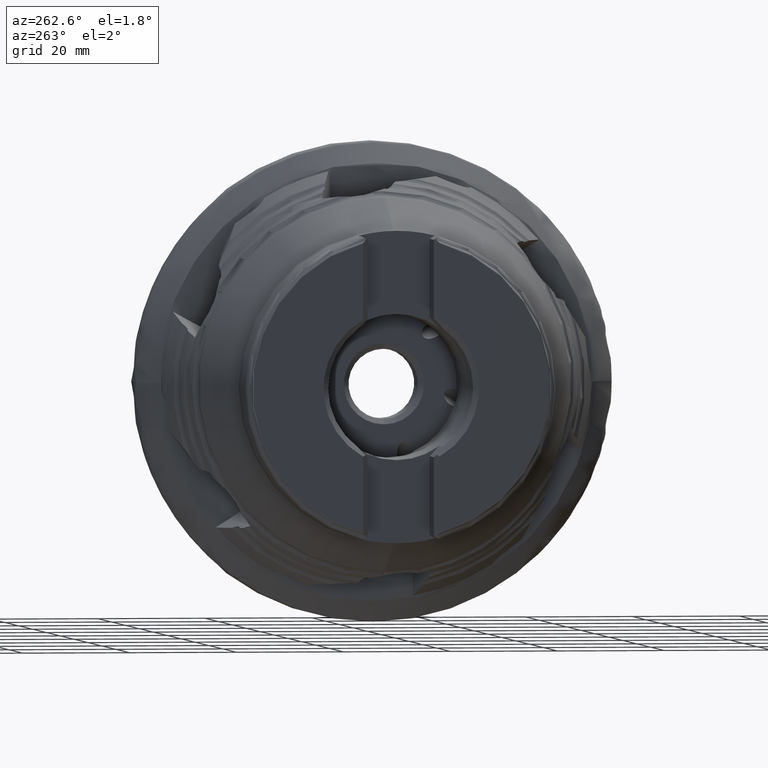
[diagram: clean part render]
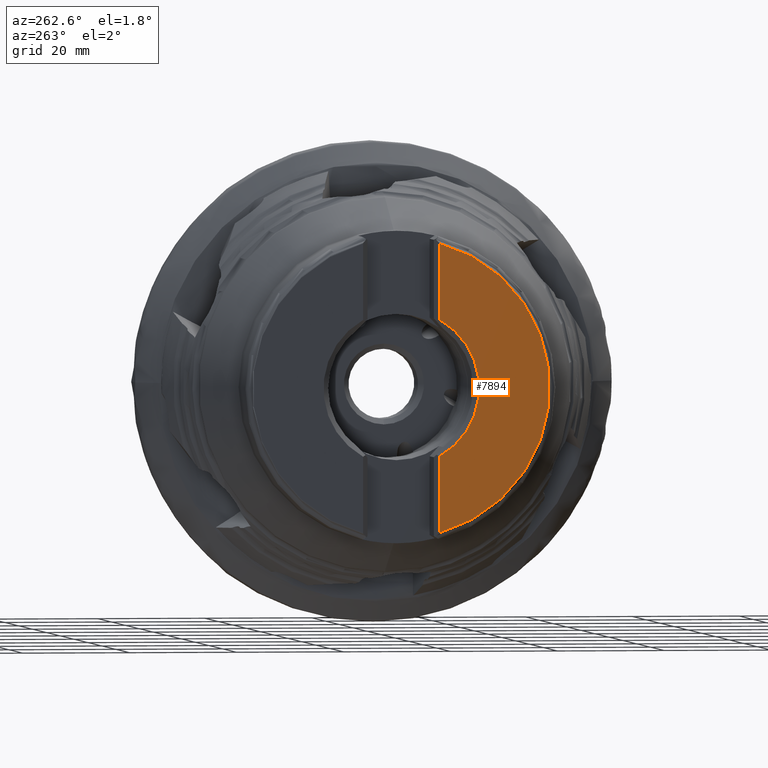
[diagram: same view with one face highlighted and labeled with its STEP entity id]
A machine part, auxiliary view. The second image highlights one B-rep face of the part: STEP entity #7894.
In plain terms, the highlighted planar face has unit normal (-1, 0, 0).
Its self-contained STEP definition (entity closure, byte-faithful):
#305 = CARTESIAN_POINT ( 'NONE',  ( -49.10399999999999900, -7.150000000000020800, -26.85445214484927200 ) ) ;
#554 = DIRECTION ( 'NONE',  ( 0.0000000000000000000, 0.0000000000000000000, -1.000000000000000000 ) ) ;
#859 = CARTESIAN_POINT ( 'NONE',  ( -49.10399999999999900, -7.150000000000020800, 26.85445214484927200 ) ) ;
#897 = CIRCLE ( 'NONE', #6122, 27.78999999999999900 ) ;
#999 = DIRECTION ( 'NONE',  ( 0.0000000000000000000, 0.0000000000000000000, 1.000000000000000000 ) ) ;
#1037 = PLANE ( 'NONE',  #8040 ) ;
#1183 = VERTEX_POINT ( 'NONE', #859 ) ;
#1603 = CARTESIAN_POINT ( 'NONE',  ( -49.10400000000000600, -7.150000000000020800, 0.0000000000000000000 ) ) ;
#1636 = LINE ( 'NONE', #1603, #3128 ) ;
#1981 = EDGE_CURVE ( 'NONE', #5029, #2544, #10172, .T. ) ;
#2105 = CARTESIAN_POINT ( 'NONE',  ( -49.10399999999999900, 0.0000000000000000000, 0.0000000000000000000 ) ) ;
#2137 = DIRECTION ( 'NONE',  ( 1.000000000000000000, -0.0000000000000000000, -0.0000000000000000000 ) ) ;
#2544 = VERTEX_POINT ( 'NONE', #8754 ) ;
#2767 = EDGE_LOOP ( 'NONE', ( #7184, #9337, #10210, #5374 ) ) ;
#3128 = VECTOR ( 'NONE', #9462, 1000.000000000000000 ) ;
#3490 = LINE ( 'NONE', #4653, #3619 ) ;
#3619 = VECTOR ( 'NONE', #9285, 1000.000000000000000 ) ;
#4653 = CARTESIAN_POINT ( 'NONE',  ( -49.10400000000000600, -7.150000000000020800, 0.0000000000000000000 ) ) ;
#5029 = VERTEX_POINT ( 'NONE', #7125 ) ;
#5374 = ORIENTED_EDGE ( 'NONE', *, *, #1981, .T. ) ;
#5741 = DIRECTION ( 'NONE',  ( -1.000000000000000000, 0.0000000000000000000, 0.0000000000000000000 ) ) ;
#6122 = AXIS2_PLACEMENT_3D ( 'NONE', #2105, #2137, #6936 ) ;
#6612 = CARTESIAN_POINT ( 'NONE',  ( -49.10400000000000600, 27.78999999999999900, 0.0000000000000000000 ) ) ;
#6936 = DIRECTION ( 'NONE',  ( 0.0000000000000000000, 0.0000000000000000000, -1.000000000000000000 ) ) ;
#6971 = EDGE_CURVE ( 'NONE', #1183, #9984, #897, .T. ) ;
#7125 = CARTESIAN_POINT ( 'NONE',  ( -49.10399999999999900, -7.150000000000019900, 12.70071356263102500 ) ) ;
#7184 = ORIENTED_EDGE ( 'NONE', *, *, #9335, .F. ) ;
#7473 = AXIS2_PLACEMENT_3D ( 'NONE', #7576, #9180, #554 ) ;
#7562 = EDGE_CURVE ( 'NONE', #5029, #1183, #1636, .T. ) ;
#7576 = CARTESIAN_POINT ( 'NONE',  ( -49.10399999999999900, 0.0000000000000000000, 0.0000000000000000000 ) ) ;
#7894 = ADVANCED_FACE ( 'NONE', ( #9354 ), #1037, .T. ) ;
#8040 = AXIS2_PLACEMENT_3D ( 'NONE', #6612, #5741, #999 ) ;
#8754 = CARTESIAN_POINT ( 'NONE',  ( -49.10399999999999900, -7.150000000000019000, -12.70071356263102700 ) ) ;
#9180 = DIRECTION ( 'NONE',  ( 1.000000000000000000, -0.0000000000000000000, -0.0000000000000000000 ) ) ;
#9285 = DIRECTION ( 'NONE',  ( 0.0000000000000000000, 0.0000000000000000000, 1.000000000000000000 ) ) ;
#9335 = EDGE_CURVE ( 'NONE', #9984, #2544, #3490, .T. ) ;
#9337 = ORIENTED_EDGE ( 'NONE', *, *, #6971, .F. ) ;
#9354 = FACE_OUTER_BOUND ( 'NONE', #2767, .T. ) ;
#9462 = DIRECTION ( 'NONE',  ( 0.0000000000000000000, 0.0000000000000000000, 1.000000000000000000 ) ) ;
#9984 = VERTEX_POINT ( 'NONE', #305 ) ;
#10172 = CIRCLE ( 'NONE', #7473, 14.57499999999999800 ) ;
#10210 = ORIENTED_EDGE ( 'NONE', *, *, #7562, .F. ) ;